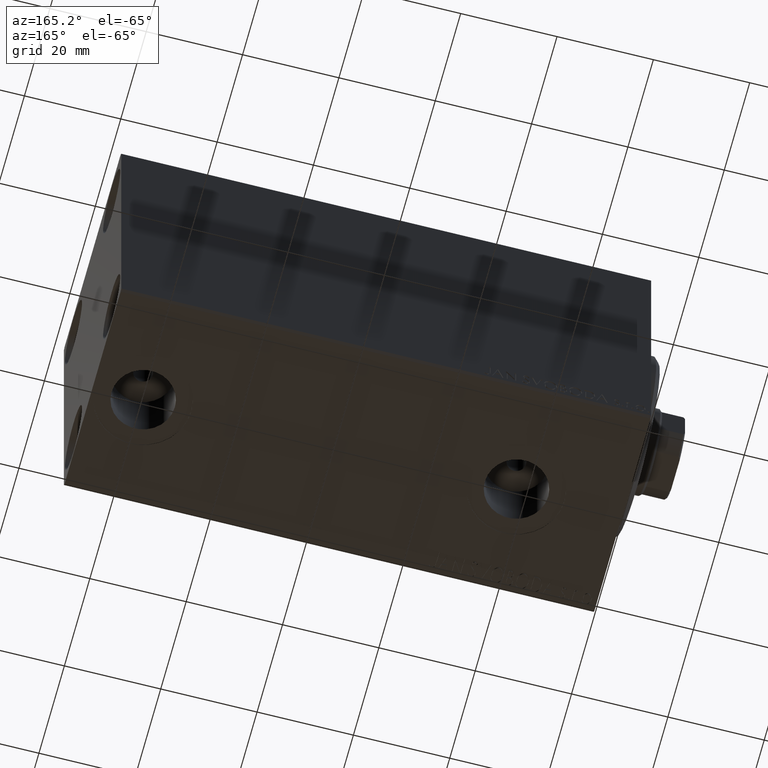
[diagram: clean part render]
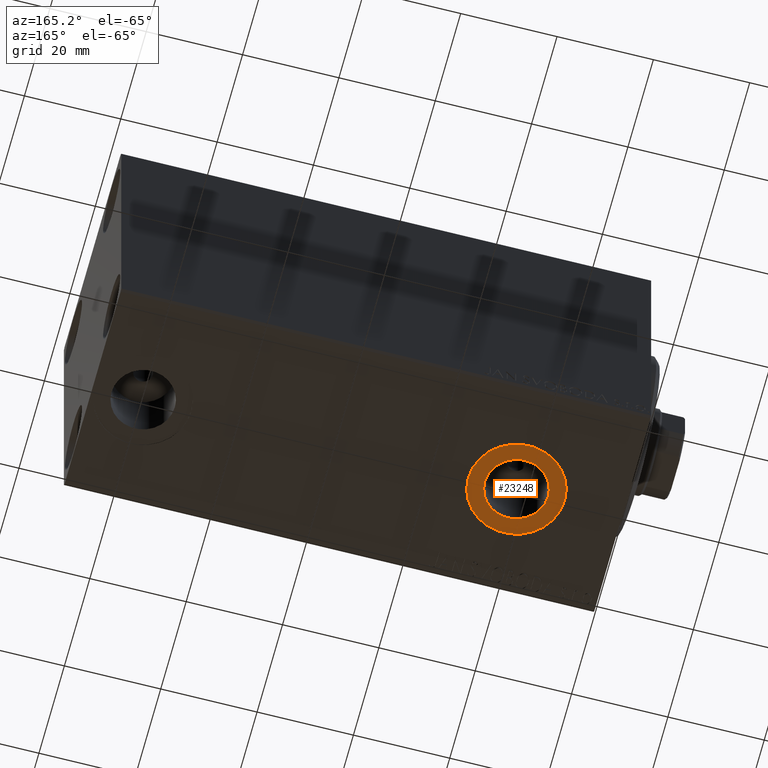
[diagram: same view with one face highlighted and labeled with its STEP entity id]
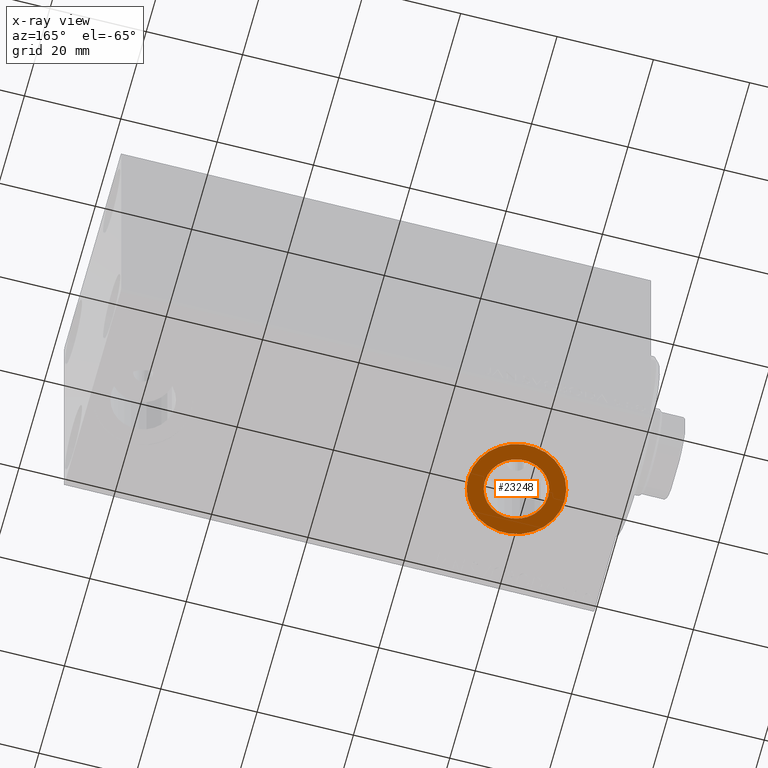
[diagram: x-ray of the same camera — body ghosted, the highlighted face saturated]
A machine part, auxiliary view. The second image highlights one B-rep face of the part: STEP entity #23248.
The next image is the same camera in x-ray: the body ghosted, the highlighted face saturated — about 0% of this face is hidden behind the body in this view.
In plain terms, the highlighted planar face has unit normal (0, 0, -1).
Its self-contained STEP definition (entity closure, byte-faithful):
#4413 = CARTESIAN_POINT ( 'NONE',  ( 22.00000000000000000, -3.594347949397319039E-15, -32.40000000000000568 ) ) ;
#4505 = EDGE_CURVE ( 'NONE', #31103, #34185, #18558, .T. ) ;
#5142 = EDGE_CURVE ( 'NONE', #11147, #13326, #36889, .T. ) ;
#5415 = CARTESIAN_POINT ( 'NONE',  ( 22.00000000000000000, -3.594347949397319039E-15, -32.40000000000000568 ) ) ;
#7964 = ORIENTED_EDGE ( 'NONE', *, *, #5142, .F. ) ;
#8752 = CARTESIAN_POINT ( 'NONE',  ( 22.00000000000000000, -3.594347949397319039E-15, -32.40000000000000568 ) ) ;
#9408 = AXIS2_PLACEMENT_3D ( 'NONE', #18528, #11698, #39585 ) ;
#11147 = VERTEX_POINT ( 'NONE', #17562 ) ;
#11425 = AXIS2_PLACEMENT_3D ( 'NONE', #8752, #29757, #19710 ) ;
#11698 = DIRECTION ( 'NONE',  ( 0.000000000000000000, 0.000000000000000000, -1.000000000000000000 ) ) ;
#12307 = CIRCLE ( 'NONE', #9408, 6.580000000000002736 ) ;
#12904 = FACE_OUTER_BOUND ( 'NONE', #40538, .T. ) ;
#13266 = CARTESIAN_POINT ( 'NONE',  ( 28.58000000000000185, -2.788530355558360786E-15, -32.40000000000000568 ) ) ;
#13326 = VERTEX_POINT ( 'NONE', #13266 ) ;
#15410 = EDGE_CURVE ( 'NONE', #13326, #11147, #12307, .T. ) ;
#16493 = ORIENTED_EDGE ( 'NONE', *, *, #4505, .T. ) ;
#16990 = FACE_BOUND ( 'NONE', #31786, .T. ) ;
#17562 = CARTESIAN_POINT ( 'NONE',  ( 15.41999999999999638, -3.594347949397319039E-15, -32.40000000000000568 ) ) ;
#18338 = DIRECTION ( 'NONE',  ( 0.000000000000000000, 0.000000000000000000, -1.000000000000000000 ) ) ;
#18528 = CARTESIAN_POINT ( 'NONE',  ( 22.00000000000000000, -3.594347949397319039E-15, -32.40000000000000568 ) ) ;
#18558 = CIRCLE ( 'NONE', #36077, 10.00000000000000000 ) ;
#19710 = DIRECTION ( 'NONE',  ( -1.000000000000000000, 0.000000000000000000, 0.000000000000000000 ) ) ;
#21104 = ORIENTED_EDGE ( 'NONE', *, *, #22975, .T. ) ;
#22975 = EDGE_CURVE ( 'NONE', #34185, #31103, #25276, .T. ) ;
#23164 = CARTESIAN_POINT ( 'NONE',  ( 0.000000000000000000, 0.000000000000000000, -32.40000000000000568 ) ) ;
#23248 = ADVANCED_FACE ( 'NONE', ( #16990, #12904 ), #26813, .T. ) ;
#23684 = DIRECTION ( 'NONE',  ( -1.000000000000000000, 0.000000000000000000, 0.000000000000000000 ) ) ;
#25276 = CIRCLE ( 'NONE', #11425, 10.00000000000000000 ) ;
#26656 = AXIS2_PLACEMENT_3D ( 'NONE', #4413, #18338, #40503 ) ;
#26813 = PLANE ( 'NONE',  #39163 ) ;
#29757 = DIRECTION ( 'NONE',  ( 0.000000000000000000, 0.000000000000000000, -1.000000000000000000 ) ) ;
#31103 = VERTEX_POINT ( 'NONE', #38119 ) ;
#31786 = EDGE_LOOP ( 'NONE', ( #7964, #38729 ) ) ;
#33045 = DIRECTION ( 'NONE',  ( 0.000000000000000000, 0.000000000000000000, -1.000000000000000000 ) ) ;
#33897 = DIRECTION ( 'NONE',  ( -1.000000000000000000, 0.000000000000000000, -0.000000000000000000 ) ) ;
#34185 = VERTEX_POINT ( 'NONE', #37429 ) ;
#36077 = AXIS2_PLACEMENT_3D ( 'NONE', #5415, #33045, #23684 ) ;
#36889 = CIRCLE ( 'NONE', #26656, 6.580000000000002736 ) ;
#37429 = CARTESIAN_POINT ( 'NONE',  ( 32.00000000000000000, -2.369701150249966375E-15, -32.40000000000000568 ) ) ;
#38119 = CARTESIAN_POINT ( 'NONE',  ( 11.99999999999999822, -3.594347949397319039E-15, -32.40000000000000568 ) ) ;
#38729 = ORIENTED_EDGE ( 'NONE', *, *, #15410, .F. ) ;
#39163 = AXIS2_PLACEMENT_3D ( 'NONE', #23164, #40782, #33897 ) ;
#39585 = DIRECTION ( 'NONE',  ( -1.000000000000000000, 0.000000000000000000, 0.000000000000000000 ) ) ;
#40503 = DIRECTION ( 'NONE',  ( -1.000000000000000000, 0.000000000000000000, 0.000000000000000000 ) ) ;
#40538 = EDGE_LOOP ( 'NONE', ( #16493, #21104 ) ) ;
#40782 = DIRECTION ( 'NONE',  ( 0.000000000000000000, 0.000000000000000000, -1.000000000000000000 ) ) ;